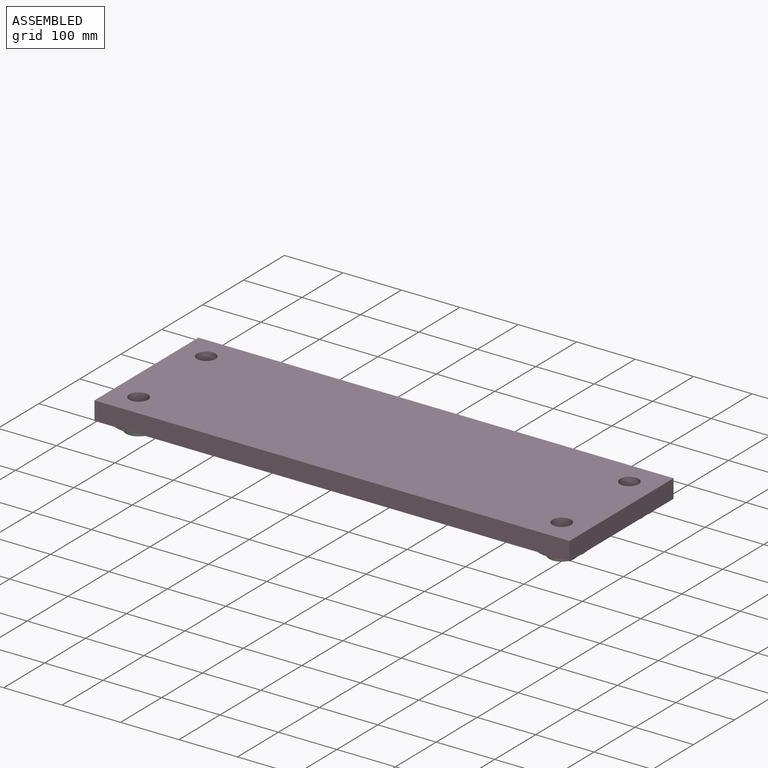
[diagram: assembled view]
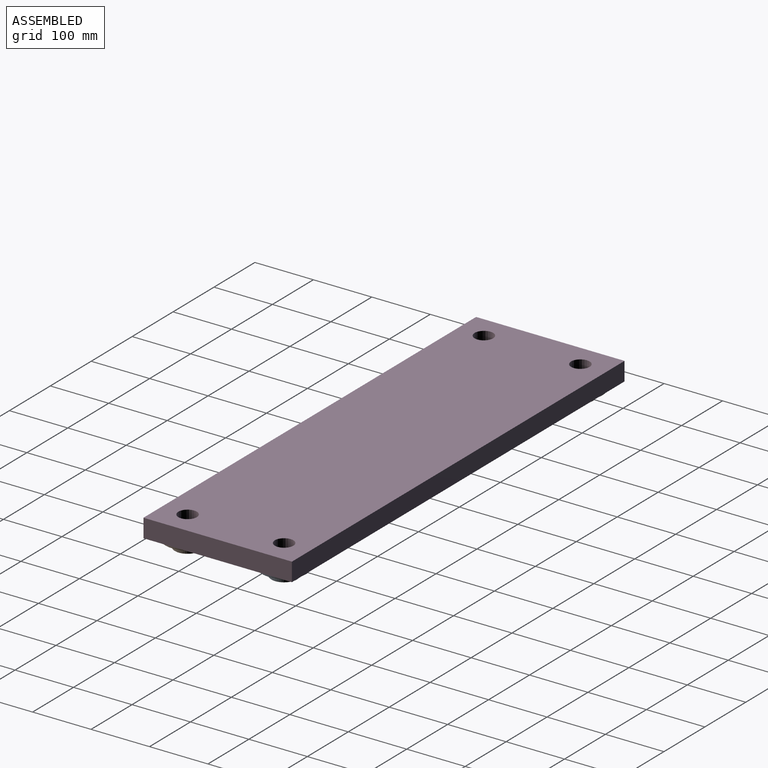
[diagram: assembled view, second angle]
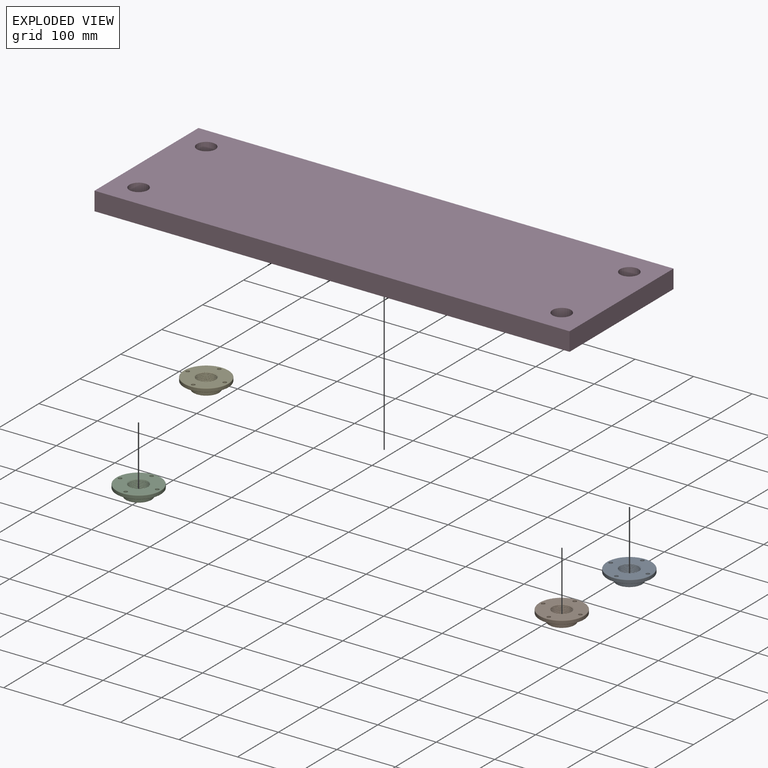
[diagram: exploded view]
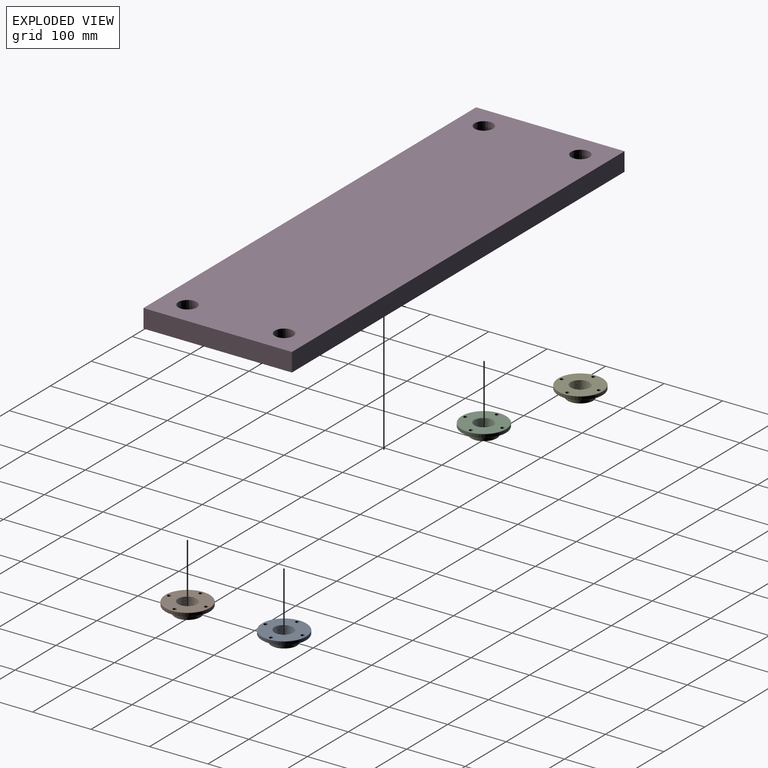
[diagram: exploded view, second angle]
ASSEMBLY  parts=5 mates=4
PART A: 22 faces, bbox 82.5x82.5x19.9 mm
  f0: cylinder r=38.1mm len=76.2mm, axis (0,0,-1), area 1140.1mm2, adj f16,f17
  f1: plane 42.86x42.86mm, normal (0,0,1), area 583.3mm2, adj f5,f14
  f2: cylinder r=15.75mm len=31.5mm, axis (0,0,-1), area 1141.2mm2, adj f4,f5,f6,f7
  f3: plane 74.61x74.61mm, normal (0,0,-1), area 3386mm2, adj f4,f10,f11,f12,f13,f17
  f4: cone r=16.54mm half-angle=45deg, axis (0,0,-1), area 92.5mm2, adj f2,f3,f6,f7
  f5: cone r=15.75mm half-angle=45deg, axis (0,0,1), area 92.5mm2, adj f1,f2,f6,f7
  f6: bspline ~37.99x32.9mm, area 722.1mm2, adj f2,f4,f5,f7
  f7: bspline ~37.99x32.9mm, area 785.3mm2, adj f2,f4,f5,f6
  f8: cylinder r=22.23mm len=44.45mm, axis (0,0,1), area 1551.8mm2, adj f14,f15
  f9: plane 74.61x74.61mm, normal (0,0,1), area 2422.7mm2, adj f15,f16,f18,f19,f20,f21
  f10: cylinder r=3.17mm len=6.35mm, axis (0,0,-1), area 95mm2, adj f3,f18
  f11: cylinder r=3.17mm len=6.35mm, axis (0,0,-1), area 95mm2, adj f3,f21
  f12: cylinder r=3.17mm len=6.35mm, axis (0,0,-1), area 95mm2, adj f3,f20
  f13: cylinder r=3.17mm len=6.35mm, axis (0,0,-1), area 95mm2, adj f3,f19
  f14: torus R=21.43mm, axis (0,0,1), area 171.9mm2, adj f1,f8
  f15: torus R=23.02mm, axis (0,0,1), area 176.4mm2, adj f8,f9
  f16: torus R=37.31mm, axis (0,0,1), area 296.2mm2, adj f0,f9
  f17: torus R=37.31mm, axis (0,0,1), area 296.2mm2, adj f0,f3
  f18: cone r=4.76mm half-angle=45deg, axis (0,0,1), area 56mm2, adj f9,f10
  f19: cone r=4.76mm half-angle=45deg, axis (0,0,1), area 56mm2, adj f9,f13
  f20: cone r=4.76mm half-angle=45deg, axis (0,0,1), area 56mm2, adj f9,f12
  f21: cone r=4.76mm half-angle=45deg, axis (0,0,1), area 56mm2, adj f9,f11
PART B: same geometry as A
PART C: same geometry as A
PART D: 10 faces, bbox 812.8x254x31.8 mm
  f0: plane 254x31.75mm, normal (-1,0,0), area 8064.5mm2, adj f1,f6,f8,f9
  f1: plane 812.8x31.75mm, normal (0,-1,0), area 25806.4mm2, adj f0,f2,f8,f9
  f2: plane 254x31.75mm, normal (1,0,0), area 8064.5mm2, adj f1,f6,f8,f9
  f3: cylinder r=15.88mm len=31.75mm, axis (0,0,-1), area 3166.9mm2, adj f8,f9
  f4: cylinder r=15.88mm len=31.75mm, axis (0,0,-1), area 3166.9mm2, adj f8,f9
  f5: cylinder r=15.88mm len=31.75mm, axis (0,0,-1), area 3166.9mm2, adj f8,f9
  f6: plane 812.8x31.75mm, normal (0,1,0), area 25806.4mm2, adj f0,f2,f8,f9
  f7: cylinder r=15.88mm len=31.75mm, axis (0,0,-1), area 3166.9mm2, adj f8,f9
  f8: plane 812.8x254mm, normal (0,0,1), area 203284.3mm2, adj f0,f1,f2,f3,f4,f5,f6,f7
  f9: plane 812.8x254mm, normal (0,0,-1), area 203284.3mm2, adj f0,f1,f2,f3,f4,f5,f6,f7
PART E: same geometry as A
PLACE A rot(axis=(1,0,0),180deg) t=(730.25,171.45,0)mm
PLACE B rot(axis=(1,0,0),180deg) t=(730.25,6.35,0)mm
PLACE C rot(axis=(0,1,0),180deg) t=(6.35,6.35,0)mm
PLACE D t=(-38.1,-38.1,0)mm fixed
PLACE E rot(axis=(1,0,0),180deg) t=(6.35,171.45,0)mm
MATE fastened B.f0 <-> D.f7  axis (0,0,1) through (730.25,6.35,0)mm
MATE fastened A.f2 <-> D.f3  axis (0,0,1) through (730.25,171.45,0)mm
MATE fastened E.f0 <-> D.f4  axis (0,0,1) through (6.35,171.45,0)mm
MATE fastened C.f0 <-> D.f5  axis (0,0,1) through (6.35,6.35,0)mm
